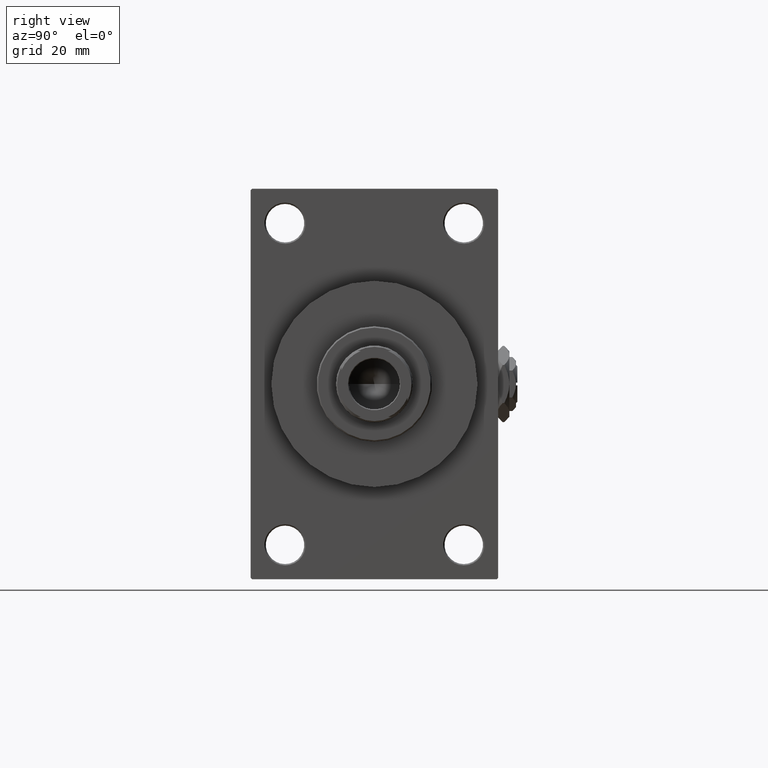
[diagram: clean part render]
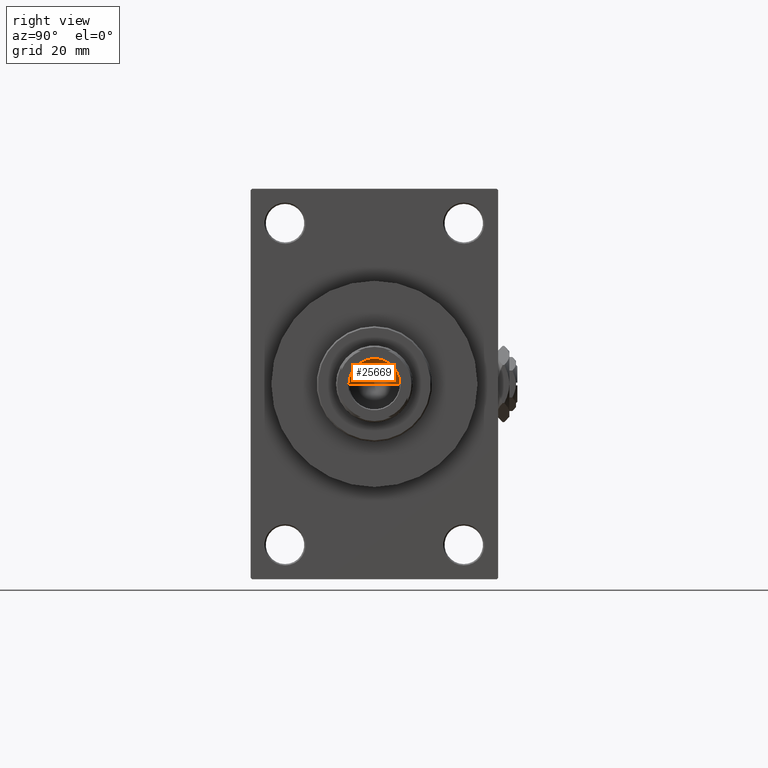
[diagram: same view with one face highlighted and labeled with its STEP entity id]
A machine part, right view. The second image highlights one B-rep face of the part: STEP entity #25669.
In plain terms, the highlighted conical surface has half-angle 59 deg.
Its self-contained STEP definition (entity closure, byte-faithful):
#667 = VERTEX_POINT ( 'NONE', #36266 ) ;
#2636 = VERTEX_POINT ( 'NONE', #24733 ) ;
#4834 = DIRECTION ( 'NONE',  ( 0.8571673007021117785, 0.000000000000000000, 0.5150380749100550437 ) ) ;
#7354 = AXIS2_PLACEMENT_3D ( 'NONE', #20349, #17131, #16634 ) ;
#8304 = LINE ( 'NONE', #8543, #17317 ) ;
#8543 = CARTESIAN_POINT ( 'NONE',  ( 9.249999999999992895, 0.000000000000000000, 114.9999999999999858 ) ) ;
#8831 = ORIENTED_EDGE ( 'NONE', *, *, #12916, .F. ) ;
#9450 = FACE_OUTER_BOUND ( 'NONE', #34020, .T. ) ;
#9500 = AXIS2_PLACEMENT_3D ( 'NONE', #17161, #20153, #24105 ) ;
#9574 = VECTOR ( 'NONE', #31625, 1000.000000000000000 ) ;
#12810 = CARTESIAN_POINT ( 'NONE',  ( -9.249999999999992895, 1.132798289211300712E-15, 114.9999999999999858 ) ) ;
#12916 = EDGE_CURVE ( 'NONE', #667, #2636, #8304, .T. ) ;
#15073 = CARTESIAN_POINT ( 'NONE',  ( -9.249999999999992895, 1.132798289211300712E-15, 114.9999999999999858 ) ) ;
#15585 = EDGE_CURVE ( 'NONE', #27205, #2636, #48973, .T. ) ;
#16634 = DIRECTION ( 'NONE',  ( 1.000000000000000000, 0.000000000000000000, 0.000000000000000000 ) ) ;
#17131 = DIRECTION ( 'NONE',  ( -0.000000000000000000, -0.000000000000000000, 1.000000000000000000 ) ) ;
#17161 = CARTESIAN_POINT ( 'NONE',  ( 0.000000000000000000, 0.000000000000000000, 114.9999999999999858 ) ) ;
#17317 = VECTOR ( 'NONE', #4834, 1000.000000000000000 ) ;
#20153 = DIRECTION ( 'NONE',  ( -0.000000000000000000, -0.000000000000000000, 1.000000000000000000 ) ) ;
#20349 = CARTESIAN_POINT ( 'NONE',  ( 0.000000000000000000, 0.000000000000000000, 114.9999999999999858 ) ) ;
#22491 = EDGE_CURVE ( 'NONE', #667, #27205, #38821, .T. ) ;
#24105 = DIRECTION ( 'NONE',  ( 1.000000000000000000, 0.000000000000000000, 0.000000000000000000 ) ) ;
#24733 = CARTESIAN_POINT ( 'NONE',  ( 9.249999999999992895, 0.000000000000000000, 114.9999999999999858 ) ) ;
#25669 = ADVANCED_FACE ( 'NONE', ( #9450 ), #30266, .F. ) ;
#27205 = VERTEX_POINT ( 'NONE', #15073 ) ;
#30266 = CONICAL_SURFACE ( 'NONE', #7354, 9.249999999999992895, 1.029744258676653423 ) ;
#31625 = DIRECTION ( 'NONE',  ( -0.8571673007021117785, 1.049727191138617956E-16, 0.5150380749100550437 ) ) ;
#34020 = EDGE_LOOP ( 'NONE', ( #8831, #44593, #44413 ) ) ;
#36266 = CARTESIAN_POINT ( 'NONE',  ( -9.769621978240258809E-15, 0.000000000000000000, 109.4420392739950501 ) ) ;
#38821 = LINE ( 'NONE', #12810, #9574 ) ;
#44413 = ORIENTED_EDGE ( 'NONE', *, *, #15585, .T. ) ;
#44593 = ORIENTED_EDGE ( 'NONE', *, *, #22491, .T. ) ;
#48973 = CIRCLE ( 'NONE', #9500, 9.249999999999992895 ) ;